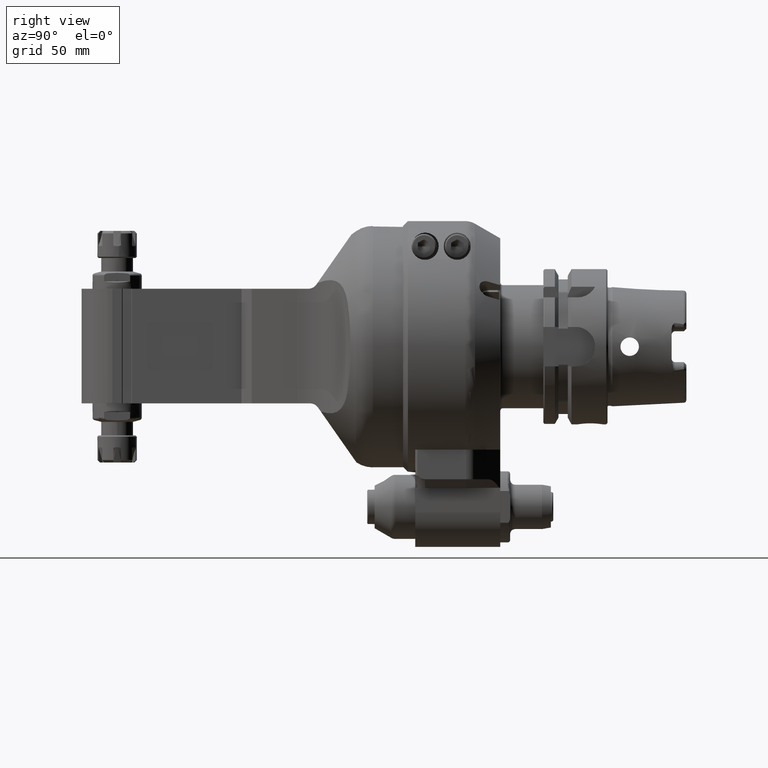
[diagram: clean part render]
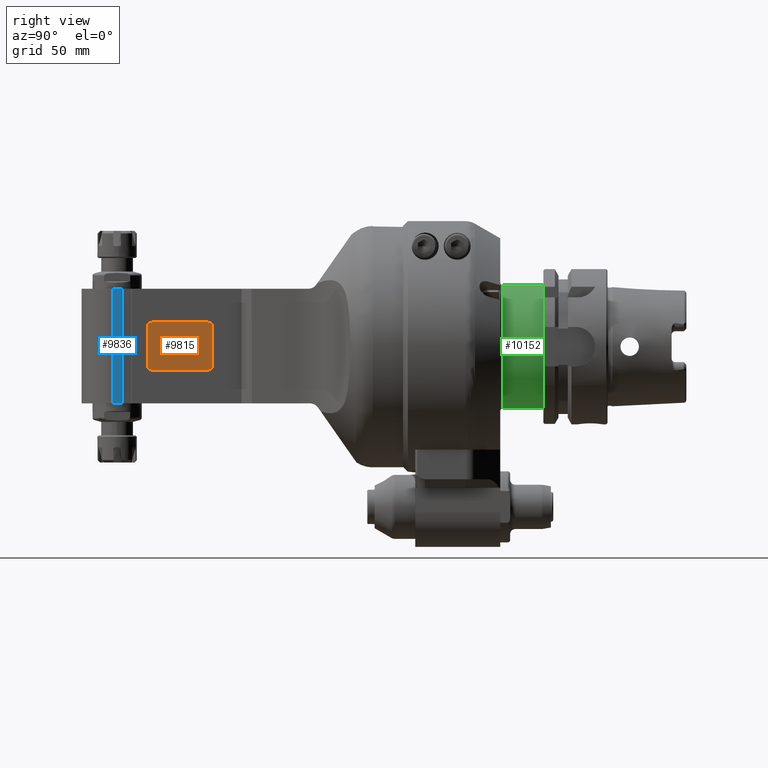
[diagram: same view with three faces highlighted in distinct colors, each labeled with its STEP entity id]
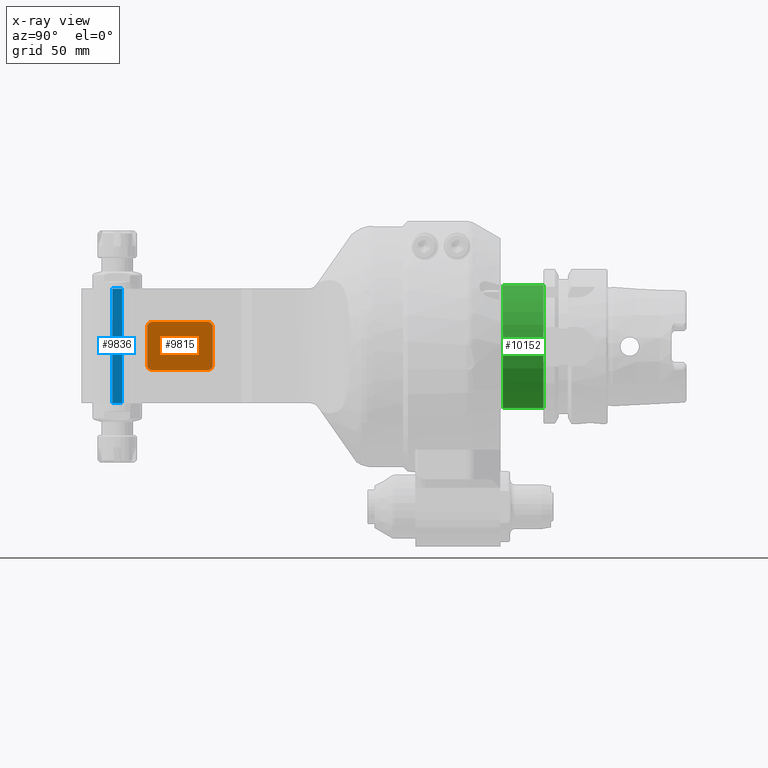
[diagram: x-ray of the same camera — body ghosted, the three highlighted faces saturated]
A machine part, right view with three faces highlighted in distinct colors.
The next image is the same camera in x-ray (body ghosted, the three faces saturated) — at least one of them is partly hidden behind the body in this view.
Their STEP definitions:

[orange] entity #9815 — the highlighted planar face has unit normal (1, 0, -0).
#749=CIRCLE('',#10476,2.);
#750=CIRCLE('',#10477,2.);
#751=CIRCLE('',#10478,2.);
#752=CIRCLE('',#10479,2.);
#1249=FACE_OUTER_BOUND('',#1852,.T.);
#1852=EDGE_LOOP('',(#6496,#6497,#6498,#6499,#6500,#6501,#6502,#6503));
#2548=LINE('',#14548,#3259);
#2552=LINE('',#14560,#3263);
#2553=LINE('',#14564,#3264);
#2554=LINE('',#14567,#3265);
#3259=VECTOR('',#11598,15.5);
#3263=VECTOR('',#11608,22.5);
#3264=VECTOR('',#11611,15.5);
#3265=VECTOR('',#11614,22.5);
#3970=VERTEX_POINT('',#14546);
#3971=VERTEX_POINT('',#14547);
#3974=VERTEX_POINT('',#14555);
#3975=VERTEX_POINT('',#14557);
#3976=VERTEX_POINT('',#14559);
#3977=VERTEX_POINT('',#14561);
#3978=VERTEX_POINT('',#14563);
#3979=VERTEX_POINT('',#14565);
#4975=EDGE_CURVE('',#3970,#3971,#2548,.T.);
#4979=EDGE_CURVE('',#3970,#3974,#749,.T.);
#4980=EDGE_CURVE('',#3975,#3971,#750,.T.);
#4981=EDGE_CURVE('',#3975,#3976,#2552,.T.);
#4982=EDGE_CURVE('',#3977,#3976,#751,.T.);
#4983=EDGE_CURVE('',#3977,#3978,#2553,.T.);
#4984=EDGE_CURVE('',#3978,#3979,#752,.T.);
#4985=EDGE_CURVE('',#3979,#3974,#2554,.T.);
#6496=ORIENTED_EDGE('',*,*,#4979,.F.);
#6497=ORIENTED_EDGE('',*,*,#4975,.T.);
#6498=ORIENTED_EDGE('',*,*,#4980,.F.);
#6499=ORIENTED_EDGE('',*,*,#4981,.T.);
#6500=ORIENTED_EDGE('',*,*,#4982,.F.);
#6501=ORIENTED_EDGE('',*,*,#4983,.T.);
#6502=ORIENTED_EDGE('',*,*,#4984,.T.);
#6503=ORIENTED_EDGE('',*,*,#4985,.T.);
#9527=PLANE('',#10475);
#9815=ADVANCED_FACE('',(#1249),#9527,.T.);
#10475=AXIS2_PLACEMENT_3D('',#14554,#11602,#11603);
#10476=AXIS2_PLACEMENT_3D('',#14556,#11604,#11605);
#10477=AXIS2_PLACEMENT_3D('',#14558,#11606,#11607);
#10478=AXIS2_PLACEMENT_3D('',#14562,#11609,#11610);
#10479=AXIS2_PLACEMENT_3D('',#14566,#11612,#11613);
#11598=DIRECTION('',(0.,0.,1.));
#11602=DIRECTION('center_axis',(1.,0.,0.));
#11603=DIRECTION('ref_axis',(0.,-1.,0.));
#11604=DIRECTION('center_axis',(-1.,0.,0.));
#11605=DIRECTION('ref_axis',(0.,1.,0.));
#11606=DIRECTION('center_axis',(-1.,0.,0.));
#11607=DIRECTION('ref_axis',(0.,0.,1.));
#11608=DIRECTION('',(0.,-1.,0.));
#11609=DIRECTION('center_axis',(-1.,0.,0.));
#11610=DIRECTION('ref_axis',(0.,-1.,0.));
#11611=DIRECTION('',(0.,0.,-1.));
#11612=DIRECTION('center_axis',(1.,0.,0.));
#11613=DIRECTION('ref_axis',(0.,-1.,0.));
#11614=DIRECTION('',(0.,1.,0.));
#14546=CARTESIAN_POINT('',(14.2,38.75,-7.5));
#14547=CARTESIAN_POINT('',(14.2,38.75,8.));
#14548=CARTESIAN_POINT('',(14.2,38.75,-7.5));
#14554=CARTESIAN_POINT('Origin',(14.2,133.,0.));
#14555=CARTESIAN_POINT('',(14.2,36.75,-9.5));
#14556=CARTESIAN_POINT('Origin',(14.2,36.75,-7.5));
#14557=CARTESIAN_POINT('',(14.2,36.75,10.));
#14558=CARTESIAN_POINT('Origin',(14.2,36.75,8.));
#14559=CARTESIAN_POINT('',(14.2,14.25,10.));
#14560=CARTESIAN_POINT('',(14.2,36.75,10.));
#14561=CARTESIAN_POINT('',(14.2,12.25,8.));
#14562=CARTESIAN_POINT('Origin',(14.2,14.25,8.));
#14563=CARTESIAN_POINT('',(14.2,12.25,-7.5));
#14564=CARTESIAN_POINT('',(14.2,12.25,8.));
#14565=CARTESIAN_POINT('',(14.2,14.25,-9.5));
#14566=CARTESIAN_POINT('Origin',(14.2,14.25,-7.5));
#14567=CARTESIAN_POINT('',(14.2,14.25,-9.5));

[blue] entity #9836 — the highlighted planar face has unit normal (-1, -0, 0).
#1270=FACE_OUTER_BOUND('',#1878,.T.);
#1878=EDGE_LOOP('',(#6643,#6644,#6645,#6646));
#2576=LINE('',#14626,#3287);
#2582=LINE('',#14640,#3293);
#2610=LINE('',#14826,#3321);
#2611=LINE('',#14828,#3322);
#3287=VECTOR('',#11658,3.908961215017);
#3293=VECTOR('',#11670,3.908961215017);
#3321=VECTOR('',#11754,46.5);
#3322=VECTOR('',#11757,46.5);
#4004=VERTEX_POINT('',#14623);
#4005=VERTEX_POINT('',#14625);
#4009=VERTEX_POINT('',#14637);
#4010=VERTEX_POINT('',#14639);
#5014=EDGE_CURVE('',#4004,#4005,#2576,.T.);
#5021=EDGE_CURVE('',#4009,#4010,#2582,.T.);
#5071=EDGE_CURVE('',#4004,#4010,#2610,.T.);
#5072=EDGE_CURVE('',#4009,#4005,#2611,.T.);
#6643=ORIENTED_EDGE('',*,*,#5072,.T.);
#6644=ORIENTED_EDGE('',*,*,#5014,.F.);
#6645=ORIENTED_EDGE('',*,*,#5071,.T.);
#6646=ORIENTED_EDGE('',*,*,#5021,.F.);
#9543=PLANE('',#10522);
#9836=ADVANCED_FACE('',(#1270),#9543,.F.);
#10522=AXIS2_PLACEMENT_3D('',#14827,#11755,#11756);
#11658=DIRECTION('',(0.,1.,0.));
#11670=DIRECTION('',(0.,-1.,0.));
#11754=DIRECTION('',(0.,0.,-1.));
#11755=DIRECTION('center_axis',(-1.,0.,0.));
#11756=DIRECTION('ref_axis',(0.,-1.,0.));
#11757=DIRECTION('',(0.,0.,1.));
#14623=CARTESIAN_POINT('',(14.5,-1.908961215017,23.5));
#14625=CARTESIAN_POINT('',(14.5,2.,23.5));
#14626=CARTESIAN_POINT('',(14.5,-1.908961215017,23.5));
#14637=CARTESIAN_POINT('',(14.5,2.,-23.));
#14639=CARTESIAN_POINT('',(14.5,-1.908961215017,-23.));
#14640=CARTESIAN_POINT('',(14.5,2.,-23.));
#14826=CARTESIAN_POINT('',(14.5,-1.908961215017,23.5));
#14827=CARTESIAN_POINT('Origin',(14.5,50.5,58.8000024));
#14828=CARTESIAN_POINT('',(14.5,2.,-23.));

[green] entity #10152 — the highlighted cylindrical surface (bore or boss wall) has radius 25 mm, axis along (0, -1, 0).
#681=CYLINDRICAL_SURFACE('',#11109,25.);
#1031=CIRCLE('',#11106,25.);
#1033=CIRCLE('',#11108,25.);
#1034=CIRCLE('',#11110,25.);
#1586=FACE_OUTER_BOUND('',#2252,.T.);
#2252=EDGE_LOOP('',(#8184,#8185,#8186,#8187,#8188));
#2955=LINE('',#17217,#3666);
#3666=VECTOR('',#13275,25.);
#4540=VERTEX_POINT('',#17210);
#4541=VERTEX_POINT('',#17211);
#4542=VERTEX_POINT('',#17216);
#5820=EDGE_CURVE('',#4540,#4541,#1031,.T.);
#5822=EDGE_CURVE('',#4541,#4540,#1033,.T.);
#5823=EDGE_CURVE('',#4540,#4542,#2955,.T.);
#5824=EDGE_CURVE('',#4542,#4542,#1034,.T.);
#8184=ORIENTED_EDGE('',*,*,#5820,.F.);
#8185=ORIENTED_EDGE('',*,*,#5823,.T.);
#8186=ORIENTED_EDGE('',*,*,#5824,.F.);
#8187=ORIENTED_EDGE('',*,*,#5823,.F.);
#8188=ORIENTED_EDGE('',*,*,#5822,.F.);
#10152=ADVANCED_FACE('',(#1586),#681,.T.);
#11106=AXIS2_PLACEMENT_3D('',#17212,#13267,#13268);
#11108=AXIS2_PLACEMENT_3D('',#17214,#13271,#13272);
#11109=AXIS2_PLACEMENT_3D('',#17215,#13273,#13274);
#11110=AXIS2_PLACEMENT_3D('',#17218,#13276,#13277);
#13267=DIRECTION('center_axis',(0.,-1.,0.));
#13268=DIRECTION('ref_axis',(0.,0.,1.));
#13271=DIRECTION('center_axis',(0.,-1.,0.));
#13272=DIRECTION('ref_axis',(0.,0.,1.));
#13273=DIRECTION('center_axis',(0.,-1.,0.));
#13274=DIRECTION('ref_axis',(0.,0.,-1.));
#13275=DIRECTION('',(0.,1.,0.));
#13276=DIRECTION('center_axis',(0.,1.,0.));
#13277=DIRECTION('ref_axis',(-0.94673966854674,0.,-0.322000000000014));
#17210=CARTESIAN_POINT('',(1.04095139159816E-14,40.5,25.));
#17211=CARTESIAN_POINT('',(-3.06160087463838E-15,40.5,-25.));
#17212=CARTESIAN_POINT('Origin',(1.61232300003015E-20,40.5,0.));
#17214=CARTESIAN_POINT('Origin',(1.61232300003015E-20,40.5,0.));
#17215=CARTESIAN_POINT('Origin',(1.347113091385E-14,50.45,0.));
#17216=CARTESIAN_POINT('',(1.04095139159816E-14,57.,25.));
#17217=CARTESIAN_POINT('',(1.04095139159816E-14,50.45,25.));
#17218=CARTESIAN_POINT('Origin',(1.347113091385E-14,57.,0.));